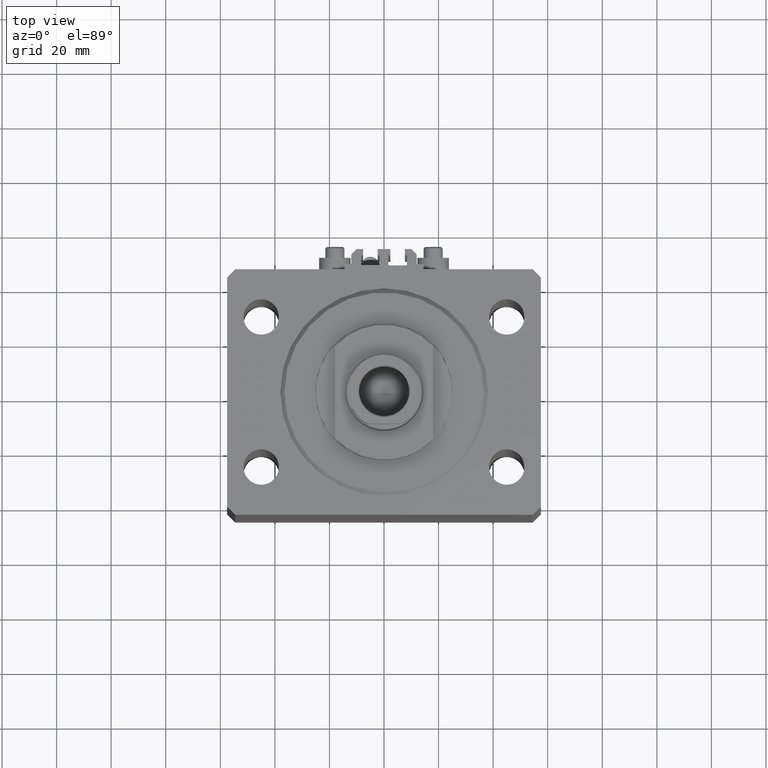
[diagram: clean part render]
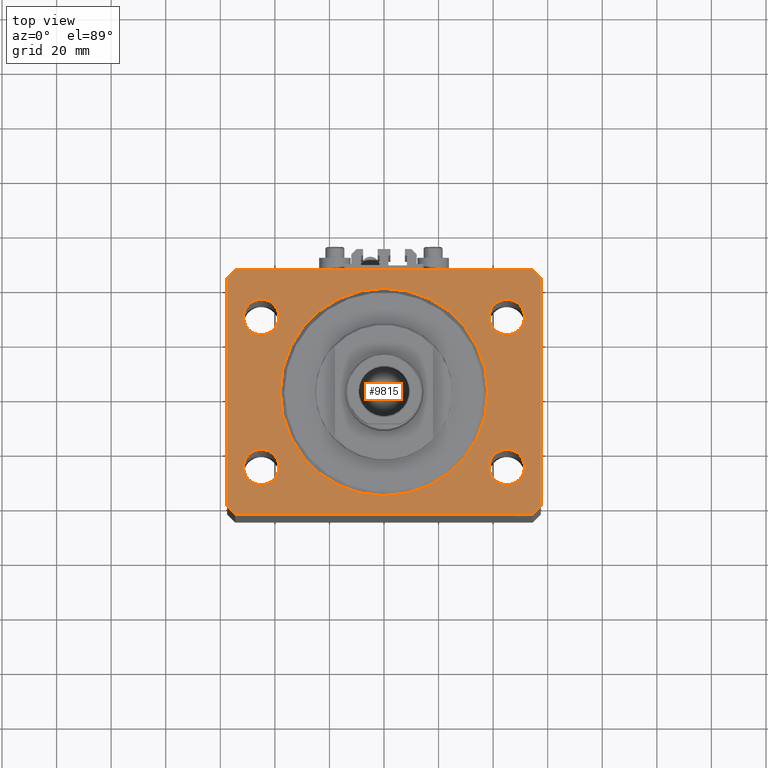
[diagram: same view with one face highlighted and labeled with its STEP entity id]
A machine part, top view. The second image highlights one B-rep face of the part: STEP entity #9815.
In plain terms, the highlighted planar face has unit normal (0, 0, 1).
Its self-contained STEP definition (entity closure, byte-faithful):
#104 = AXIS2_PLACEMENT_3D ( 'NONE', #22959, #34626, #27089 ) ;
#354 = DIRECTION ( 'NONE',  ( -0.7071067811865369146, 0.7071067811865581199, 0.000000000000000000 ) ) ;
#576 = ORIENTED_EDGE ( 'NONE', *, *, #21314, .F. ) ;
#1303 = CARTESIAN_POINT ( 'NONE',  ( -38.50000000000000000, 27.49999999999999645, 0.000000000000000000 ) ) ;
#1474 = FACE_BOUND ( 'NONE', #12119, .T. ) ;
#1510 = DIRECTION ( 'NONE',  ( -2.478176394252581141E-16, -1.000000000000000000, 0.000000000000000000 ) ) ;
#1738 = LINE ( 'NONE', #31409, #35183 ) ;
#1883 = CARTESIAN_POINT ( 'NONE',  ( -54.50000000000000711, -45.00000000000000000, 0.000000000000000000 ) ) ;
#1994 = VERTEX_POINT ( 'NONE', #37929 ) ;
#2001 = DIRECTION ( 'NONE',  ( 0.000000000000000000, 0.000000000000000000, 1.000000000000000000 ) ) ;
#2439 = ORIENTED_EDGE ( 'NONE', *, *, #33006, .F. ) ;
#2460 = DIRECTION ( 'NONE',  ( 1.000000000000000000, 0.000000000000000000, 0.000000000000000000 ) ) ;
#2610 = VERTEX_POINT ( 'NONE', #1303 ) ;
#2644 = CIRCLE ( 'NONE', #32920, 6.499999999999999112 ) ;
#2759 = CIRCLE ( 'NONE', #34615, 38.00000000000000000 ) ;
#3062 = CARTESIAN_POINT ( 'NONE',  ( -57.49999999999998579, 42.00000000000000711, 0.000000000000000000 ) ) ;
#3484 = AXIS2_PLACEMENT_3D ( 'NONE', #26076, #8271, #34311 ) ;
#4093 = LINE ( 'NONE', #36962, #38100 ) ;
#4642 = VECTOR ( 'NONE', #12736, 1000.000000000000000 ) ;
#5162 = ORIENTED_EDGE ( 'NONE', *, *, #6412, .F. ) ;
#5258 = CARTESIAN_POINT ( 'NONE',  ( -57.50000000000000711, -42.00000000000000711, 0.000000000000000000 ) ) ;
#5389 = ORIENTED_EDGE ( 'NONE', *, *, #10809, .F. ) ;
#5591 = VERTEX_POINT ( 'NONE', #23872 ) ;
#5958 = ORIENTED_EDGE ( 'NONE', *, *, #32091, .F. ) ;
#6021 = ORIENTED_EDGE ( 'NONE', *, *, #30953, .F. ) ;
#6186 = LINE ( 'NONE', #21033, #45192 ) ;
#6292 = CIRCLE ( 'NONE', #104, 6.499999999999999112 ) ;
#6412 = EDGE_CURVE ( 'NONE', #48038, #33045, #35694, .T. ) ;
#7019 = AXIS2_PLACEMENT_3D ( 'NONE', #19701, #38927, #20418 ) ;
#7773 = DIRECTION ( 'NONE',  ( 0.000000000000000000, 0.000000000000000000, 1.000000000000000000 ) ) ;
#7979 = CIRCLE ( 'NONE', #16524, 6.499999999999999112 ) ;
#7998 = VERTEX_POINT ( 'NONE', #3062 ) ;
#8036 = CARTESIAN_POINT ( 'NONE',  ( 54.50000000000000711, -44.99999999999998579, 0.000000000000000000 ) ) ;
#8170 = EDGE_CURVE ( 'NONE', #47095, #9763, #42208, .T. ) ;
#8271 = DIRECTION ( 'NONE',  ( 0.000000000000000000, 0.000000000000000000, 1.000000000000000000 ) ) ;
#8604 = EDGE_CURVE ( 'NONE', #17524, #13199, #4093, .T. ) ;
#8961 = CARTESIAN_POINT ( 'NONE',  ( 38.49999999999998579, -27.50000000000000355, 0.000000000000000000 ) ) ;
#9172 = VERTEX_POINT ( 'NONE', #33714 ) ;
#9763 = VERTEX_POINT ( 'NONE', #8036 ) ;
#9815 = ADVANCED_FACE ( 'NONE', ( #30901, #1474, #31617, #46722, #46248, #27745 ), #35031, .T. ) ;
#10047 = DIRECTION ( 'NONE',  ( 0.000000000000000000, 0.000000000000000000, 1.000000000000000000 ) ) ;
#10294 = CIRCLE ( 'NONE', #18865, 6.499999999999999112 ) ;
#10809 = EDGE_CURVE ( 'NONE', #47788, #2610, #6292, .T. ) ;
#11682 = EDGE_CURVE ( 'NONE', #5591, #1994, #6186, .T. ) ;
#11728 = EDGE_CURVE ( 'NONE', #13199, #5591, #25897, .T. ) ;
#11889 = EDGE_CURVE ( 'NONE', #9763, #17524, #16357, .T. ) ;
#11932 = EDGE_LOOP ( 'NONE', ( #22249, #25729, #35376, #26557, #15702, #12446, #37626, #17566 ) ) ;
#11938 = VECTOR ( 'NONE', #25640, 1000.000000000000000 ) ;
#12119 = EDGE_LOOP ( 'NONE', ( #21731, #39138 ) ) ;
#12446 = ORIENTED_EDGE ( 'NONE', *, *, #11889, .T. ) ;
#12736 = DIRECTION ( 'NONE',  ( 1.000000000000000000, 1.273191542001326317E-16, 0.000000000000000000 ) ) ;
#13199 = VERTEX_POINT ( 'NONE', #34998 ) ;
#13396 = DIRECTION ( 'NONE',  ( 0.000000000000000000, 0.000000000000000000, 1.000000000000000000 ) ) ;
#13577 = CARTESIAN_POINT ( 'NONE',  ( 38.50000000000000000, 27.49999999999999289, 0.000000000000000000 ) ) ;
#14034 = VERTEX_POINT ( 'NONE', #22087 ) ;
#14098 = DIRECTION ( 'NONE',  ( 1.000000000000000000, 0.000000000000000000, 0.000000000000000000 ) ) ;
#14174 = EDGE_LOOP ( 'NONE', ( #5958, #21871 ) ) ;
#14701 = AXIS2_PLACEMENT_3D ( 'NONE', #20456, #13396, #2460 ) ;
#15304 = ORIENTED_EDGE ( 'NONE', *, *, #36791, .F. ) ;
#15702 = ORIENTED_EDGE ( 'NONE', *, *, #8170, .T. ) ;
#16357 = LINE ( 'NONE', #34143, #16424 ) ;
#16424 = VECTOR ( 'NONE', #27326, 1000.000000000000000 ) ;
#16524 = AXIS2_PLACEMENT_3D ( 'NONE', #28549, #39739, #21232 ) ;
#17153 = DIRECTION ( 'NONE',  ( 0.000000000000000000, 0.000000000000000000, 1.000000000000000000 ) ) ;
#17524 = VERTEX_POINT ( 'NONE', #35047 ) ;
#17566 = ORIENTED_EDGE ( 'NONE', *, *, #11728, .T. ) ;
#17769 = VERTEX_POINT ( 'NONE', #22252 ) ;
#18074 = CARTESIAN_POINT ( 'NONE',  ( -54.49999999999999289, 45.00000000000000000, 0.000000000000000000 ) ) ;
#18230 = CIRCLE ( 'NONE', #3484, 6.499999999999999112 ) ;
#18865 = AXIS2_PLACEMENT_3D ( 'NONE', #20999, #36320, #44607 ) ;
#19701 = CARTESIAN_POINT ( 'NONE',  ( 0.000000000000000000, 0.000000000000000000, 0.000000000000000000 ) ) ;
#19787 = AXIS2_PLACEMENT_3D ( 'NONE', #39328, #17153, #42260 ) ;
#20286 = EDGE_LOOP ( 'NONE', ( #576, #5162 ) ) ;
#20418 = DIRECTION ( 'NONE',  ( 1.000000000000000000, 0.000000000000000000, -0.000000000000000000 ) ) ;
#20456 = CARTESIAN_POINT ( 'NONE',  ( 0.000000000000000000, 0.000000000000000000, 0.000000000000000000 ) ) ;
#20999 = CARTESIAN_POINT ( 'NONE',  ( -44.99999999999998579, -27.50000000000000355, 0.000000000000000000 ) ) ;
#21033 = CARTESIAN_POINT ( 'NONE',  ( 54.50000000000059686, 45.00000000000002842, 0.000000000000000000 ) ) ;
#21232 = DIRECTION ( 'NONE',  ( 1.000000000000000000, 0.000000000000000000, 0.000000000000000000 ) ) ;
#21314 = EDGE_CURVE ( 'NONE', #33045, #48038, #2759, .T. ) ;
#21731 = ORIENTED_EDGE ( 'NONE', *, *, #25944, .F. ) ;
#21774 = LINE ( 'NONE', #44182, #24541 ) ;
#21871 = ORIENTED_EDGE ( 'NONE', *, *, #31525, .F. ) ;
#22087 = CARTESIAN_POINT ( 'NONE',  ( -51.49999999999998579, -27.50000000000000355, 0.000000000000000000 ) ) ;
#22249 = ORIENTED_EDGE ( 'NONE', *, *, #11682, .T. ) ;
#22252 = CARTESIAN_POINT ( 'NONE',  ( 51.49999999999998579, -27.50000000000000355, 0.000000000000000000 ) ) ;
#22959 = CARTESIAN_POINT ( 'NONE',  ( -45.00000000000000000, 27.49999999999999645, 0.000000000000000000 ) ) ;
#23411 = CARTESIAN_POINT ( 'NONE',  ( -38.00000000000000000, 4.653657836759941941E-15, 0.000000000000000000 ) ) ;
#23872 = CARTESIAN_POINT ( 'NONE',  ( 54.50000000000059686, 45.00000000000002842, 0.000000000000000000 ) ) ;
#24541 = VECTOR ( 'NONE', #36622, 1000.000000000000114 ) ;
#25640 = DIRECTION ( 'NONE',  ( -0.7071067811865483499, -0.7071067811865466846, 0.000000000000000000 ) ) ;
#25729 = ORIENTED_EDGE ( 'NONE', *, *, #33627, .T. ) ;
#25882 = LINE ( 'NONE', #18074, #11938 ) ;
#25897 = LINE ( 'NONE', #40988, #29647 ) ;
#25944 = EDGE_CURVE ( 'NONE', #45779, #14034, #10294, .T. ) ;
#26076 = CARTESIAN_POINT ( 'NONE',  ( 45.00000000000000000, 27.49999999999999289, 0.000000000000000000 ) ) ;
#26557 = ORIENTED_EDGE ( 'NONE', *, *, #44694, .T. ) ;
#27056 = DIRECTION ( 'NONE',  ( 1.000000000000000000, 0.000000000000000000, 0.000000000000000000 ) ) ;
#27089 = DIRECTION ( 'NONE',  ( 1.000000000000000000, 0.000000000000000000, 0.000000000000000000 ) ) ;
#27326 = DIRECTION ( 'NONE',  ( 0.7071067811865483499, 0.7071067811865466846, 0.000000000000000000 ) ) ;
#27745 = FACE_OUTER_BOUND ( 'NONE', #11932, .T. ) ;
#28243 = EDGE_LOOP ( 'NONE', ( #2439, #5389 ) ) ;
#28246 = CARTESIAN_POINT ( 'NONE',  ( -38.49999999999998579, -27.50000000000000355, 0.000000000000000000 ) ) ;
#28302 = AXIS2_PLACEMENT_3D ( 'NONE', #47959, #7773, #14098 ) ;
#28549 = CARTESIAN_POINT ( 'NONE',  ( 44.99999999999998579, -27.50000000000000355, 0.000000000000000000 ) ) ;
#28571 = DIRECTION ( 'NONE',  ( 1.000000000000000000, 0.000000000000000000, 0.000000000000000000 ) ) ;
#29141 = CIRCLE ( 'NONE', #19787, 6.499999999999999112 ) ;
#29647 = VECTOR ( 'NONE', #354, 1000.000000000000000 ) ;
#30901 = FACE_BOUND ( 'NONE', #20286, .T. ) ;
#30953 = EDGE_CURVE ( 'NONE', #9172, #45978, #18230, .T. ) ;
#31409 = CARTESIAN_POINT ( 'NONE',  ( -57.49999999999998579, 42.00000000000000711, 0.000000000000000000 ) ) ;
#31525 = EDGE_CURVE ( 'NONE', #36891, #17769, #29141, .T. ) ;
#31613 = CARTESIAN_POINT ( 'NONE',  ( -51.50000000000000000, 27.49999999999999645, 0.000000000000000000 ) ) ;
#31617 = FACE_BOUND ( 'NONE', #14174, .T. ) ;
#32091 = EDGE_CURVE ( 'NONE', #17769, #36891, #7979, .T. ) ;
#32233 = EDGE_CURVE ( 'NONE', #7998, #44479, #1738, .T. ) ;
#32920 = AXIS2_PLACEMENT_3D ( 'NONE', #46356, #10047, #28571 ) ;
#33006 = EDGE_CURVE ( 'NONE', #2610, #47788, #37598, .T. ) ;
#33045 = VERTEX_POINT ( 'NONE', #42874 ) ;
#33551 = EDGE_CURVE ( 'NONE', #14034, #45779, #2644, .T. ) ;
#33627 = EDGE_CURVE ( 'NONE', #1994, #7998, #25882, .T. ) ;
#33714 = CARTESIAN_POINT ( 'NONE',  ( 51.50000000000000000, 27.49999999999999289, 0.000000000000000000 ) ) ;
#33779 = DIRECTION ( 'NONE',  ( 6.443258625056715108E-15, 1.000000000000000000, 0.000000000000000000 ) ) ;
#34143 = CARTESIAN_POINT ( 'NONE',  ( 54.50000000000000711, -44.99999999999998579, 0.000000000000000000 ) ) ;
#34311 = DIRECTION ( 'NONE',  ( 1.000000000000000000, 0.000000000000000000, 0.000000000000000000 ) ) ;
#34615 = AXIS2_PLACEMENT_3D ( 'NONE', #38012, #45090, #27056 ) ;
#34626 = DIRECTION ( 'NONE',  ( 0.000000000000000000, 0.000000000000000000, 1.000000000000000000 ) ) ;
#34998 = CARTESIAN_POINT ( 'NONE',  ( 57.50000000000055422, 41.99999999999997868, 0.000000000000000000 ) ) ;
#35031 = PLANE ( 'NONE',  #7019 ) ;
#35047 = CARTESIAN_POINT ( 'NONE',  ( 57.50000000000000711, -41.99999999999998579, 0.000000000000000000 ) ) ;
#35183 = VECTOR ( 'NONE', #1510, 1000.000000000000000 ) ;
#35323 = CARTESIAN_POINT ( 'NONE',  ( -45.00000000000000000, 27.49999999999999645, 0.000000000000000000 ) ) ;
#35376 = ORIENTED_EDGE ( 'NONE', *, *, #32233, .T. ) ;
#35694 = CIRCLE ( 'NONE', #14701, 38.00000000000000000 ) ;
#36320 = DIRECTION ( 'NONE',  ( 0.000000000000000000, 0.000000000000000000, 1.000000000000000000 ) ) ;
#36358 = DIRECTION ( 'NONE',  ( -1.000000000000000000, -2.546383084002638829E-16, 0.000000000000000000 ) ) ;
#36622 = DIRECTION ( 'NONE',  ( 0.7071067811865491270, -0.7071067811865459074, 0.000000000000000000 ) ) ;
#36791 = EDGE_CURVE ( 'NONE', #45978, #9172, #46206, .T. ) ;
#36891 = VERTEX_POINT ( 'NONE', #8961 ) ;
#36962 = CARTESIAN_POINT ( 'NONE',  ( 57.50000000000000711, -41.99999999999998579, 0.000000000000000000 ) ) ;
#37598 = CIRCLE ( 'NONE', #45348, 6.499999999999999112 ) ;
#37626 = ORIENTED_EDGE ( 'NONE', *, *, #8604, .T. ) ;
#37929 = CARTESIAN_POINT ( 'NONE',  ( -54.49999999999999289, 45.00000000000000000, 0.000000000000000000 ) ) ;
#38012 = CARTESIAN_POINT ( 'NONE',  ( 0.000000000000000000, 0.000000000000000000, 0.000000000000000000 ) ) ;
#38100 = VECTOR ( 'NONE', #33779, 1000.000000000000000 ) ;
#38927 = DIRECTION ( 'NONE',  ( 0.000000000000000000, 0.000000000000000000, 1.000000000000000000 ) ) ;
#39138 = ORIENTED_EDGE ( 'NONE', *, *, #33551, .F. ) ;
#39328 = CARTESIAN_POINT ( 'NONE',  ( 44.99999999999998579, -27.50000000000000355, 0.000000000000000000 ) ) ;
#39460 = DIRECTION ( 'NONE',  ( 1.000000000000000000, 0.000000000000000000, 0.000000000000000000 ) ) ;
#39739 = DIRECTION ( 'NONE',  ( 0.000000000000000000, 0.000000000000000000, 1.000000000000000000 ) ) ;
#40988 = CARTESIAN_POINT ( 'NONE',  ( 57.50000000000055422, 41.99999999999997868, 0.000000000000000000 ) ) ;
#42208 = LINE ( 'NONE', #46349, #4642 ) ;
#42260 = DIRECTION ( 'NONE',  ( 1.000000000000000000, 0.000000000000000000, 0.000000000000000000 ) ) ;
#42874 = CARTESIAN_POINT ( 'NONE',  ( 38.00000000000000000, 0.000000000000000000, 0.000000000000000000 ) ) ;
#44182 = CARTESIAN_POINT ( 'NONE',  ( -57.50000000000000711, -42.00000000000000711, 0.000000000000000000 ) ) ;
#44479 = VERTEX_POINT ( 'NONE', #5258 ) ;
#44607 = DIRECTION ( 'NONE',  ( 1.000000000000000000, 0.000000000000000000, 0.000000000000000000 ) ) ;
#44694 = EDGE_CURVE ( 'NONE', #44479, #47095, #21774, .T. ) ;
#45090 = DIRECTION ( 'NONE',  ( 0.000000000000000000, 0.000000000000000000, 1.000000000000000000 ) ) ;
#45192 = VECTOR ( 'NONE', #36358, 1000.000000000000000 ) ;
#45348 = AXIS2_PLACEMENT_3D ( 'NONE', #35323, #2001, #39460 ) ;
#45779 = VERTEX_POINT ( 'NONE', #28246 ) ;
#45978 = VERTEX_POINT ( 'NONE', #13577 ) ;
#46206 = CIRCLE ( 'NONE', #28302, 6.499999999999999112 ) ;
#46248 = FACE_BOUND ( 'NONE', #28243, .T. ) ;
#46349 = CARTESIAN_POINT ( 'NONE',  ( -54.50000000000000711, -45.00000000000000000, 0.000000000000000000 ) ) ;
#46356 = CARTESIAN_POINT ( 'NONE',  ( -44.99999999999998579, -27.50000000000000355, 0.000000000000000000 ) ) ;
#46722 = FACE_BOUND ( 'NONE', #47498, .T. ) ;
#47095 = VERTEX_POINT ( 'NONE', #1883 ) ;
#47498 = EDGE_LOOP ( 'NONE', ( #6021, #15304 ) ) ;
#47788 = VERTEX_POINT ( 'NONE', #31613 ) ;
#47959 = CARTESIAN_POINT ( 'NONE',  ( 45.00000000000000000, 27.49999999999999289, 0.000000000000000000 ) ) ;
#48038 = VERTEX_POINT ( 'NONE', #23411 ) ;